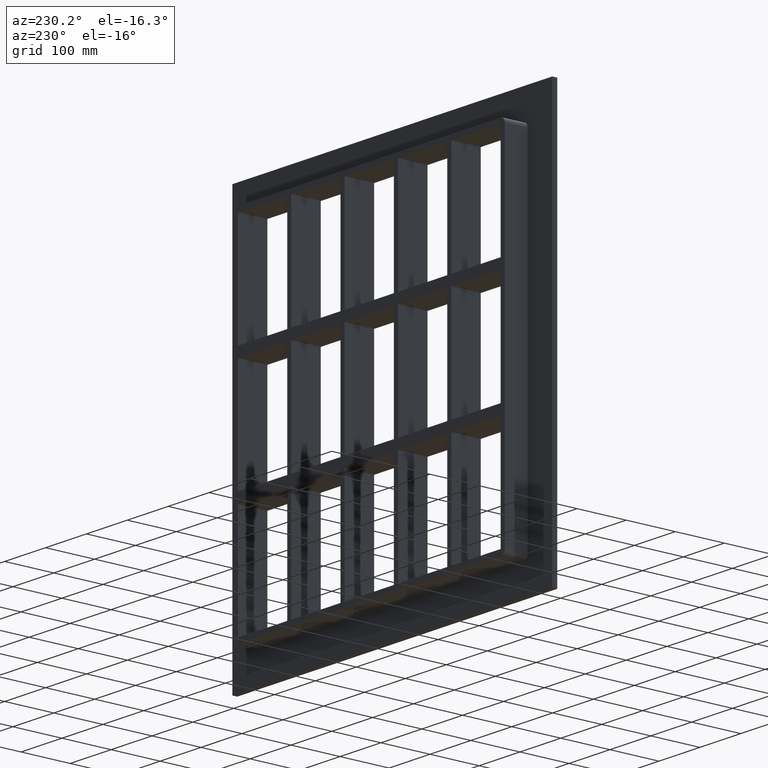
[diagram: clean part render]
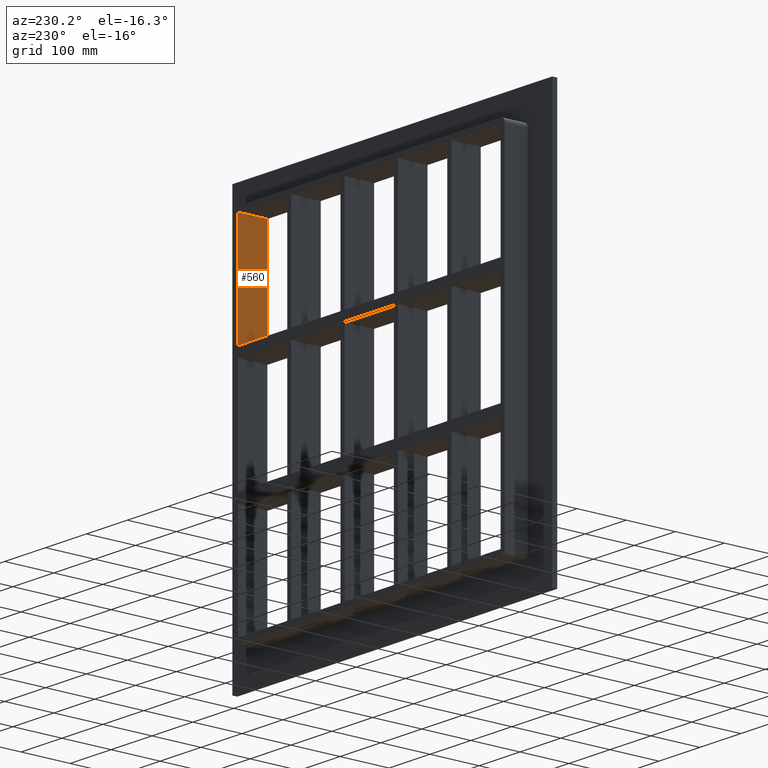
[diagram: same view with one face highlighted and labeled with its STEP entity id]
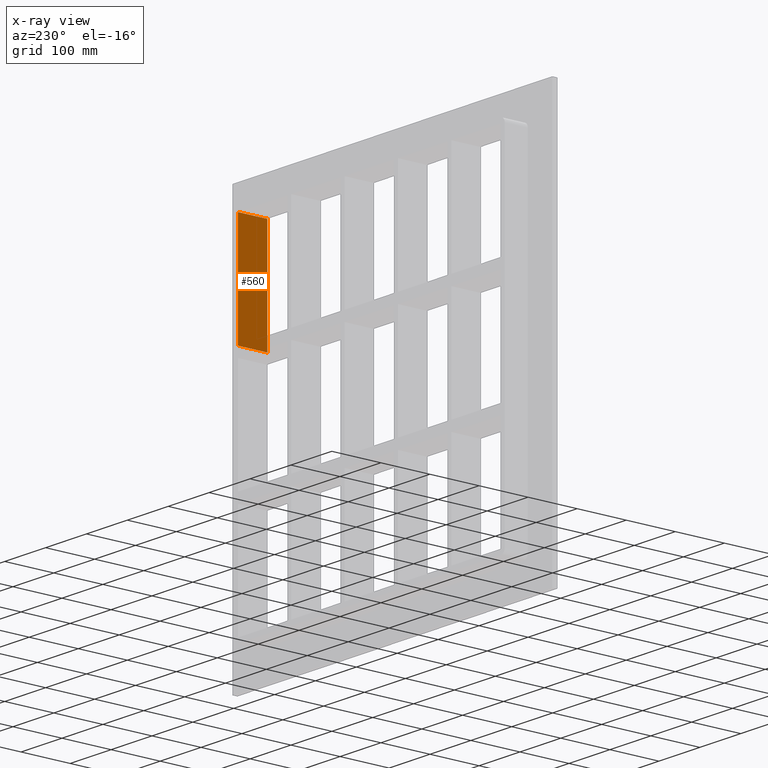
[diagram: x-ray of the same camera — body ghosted, the highlighted face saturated]
A machine part, auxiliary view. The second image highlights one B-rep face of the part: STEP entity #560.
The next image is the same camera in x-ray: the body ghosted, the highlighted face saturated — about 0% of this face is hidden behind the body in this view.
In plain terms, the highlighted planar face has unit normal (1, 0, 0).
Its self-contained STEP definition (entity closure, byte-faithful):
#323=CARTESIAN_POINT('',(321.24999999999994,-3.0,128.99999999999994));
#324=VERTEX_POINT('',#323);
#331=CARTESIAN_POINT('',(321.24999999999994,57.0,128.99999999999994));
#332=VERTEX_POINT('',#331);
#333=CARTESIAN_POINT('',(321.25,57.000000000000007,128.99999999999997));
#334=DIRECTION('',(0.0,-1.0,0.0));
#335=VECTOR('',#334,60.000000000000007);
#336=LINE('',#333,#335);
#337=EDGE_CURVE('',#332,#324,#336,.T.);
#530=CARTESIAN_POINT('',(321.25,0.0,346.99999999999994));
#531=DIRECTION('',(1.0,0.0,0.0));
#532=DIRECTION('',(0.0,0.0,-1.0));
#533=AXIS2_PLACEMENT_3D('',#530,#531,#532);
#534=PLANE('',#533);
#535=ORIENTED_EDGE('',*,*,#337,.T.);
#536=CARTESIAN_POINT('',(321.25,-3.0,347.0));
#537=VERTEX_POINT('',#536);
#538=CARTESIAN_POINT('',(321.25,-3.0,347.0));
#539=DIRECTION('',(0.0,0.0,-1.0));
#540=VECTOR('',#539,218.00000000000006);
#541=LINE('',#538,#540);
#542=EDGE_CURVE('',#537,#324,#541,.T.);
#543=ORIENTED_EDGE('',*,*,#542,.F.);
#544=CARTESIAN_POINT('',(321.25,57.0,347.0));
#545=VERTEX_POINT('',#544);
#546=CARTESIAN_POINT('',(321.25,-3.0,346.99999999999994));
#547=DIRECTION('',(0.0,1.0,0.0));
#548=VECTOR('',#547,60.0);
#549=LINE('',#546,#548);
#550=EDGE_CURVE('',#537,#545,#549,.T.);
#551=ORIENTED_EDGE('',*,*,#550,.T.);
#552=CARTESIAN_POINT('',(321.25,57.0,128.99999999999994));
#553=DIRECTION('',(0.0,0.0,1.0));
#554=VECTOR('',#553,218.00000000000006);
#555=LINE('',#552,#554);
#556=EDGE_CURVE('',#332,#545,#555,.T.);
#557=ORIENTED_EDGE('',*,*,#556,.F.);
#558=EDGE_LOOP('',(#535,#543,#551,#557));
#559=FACE_OUTER_BOUND('',#558,.T.);
#560=ADVANCED_FACE('',(#559),#534,.F.);